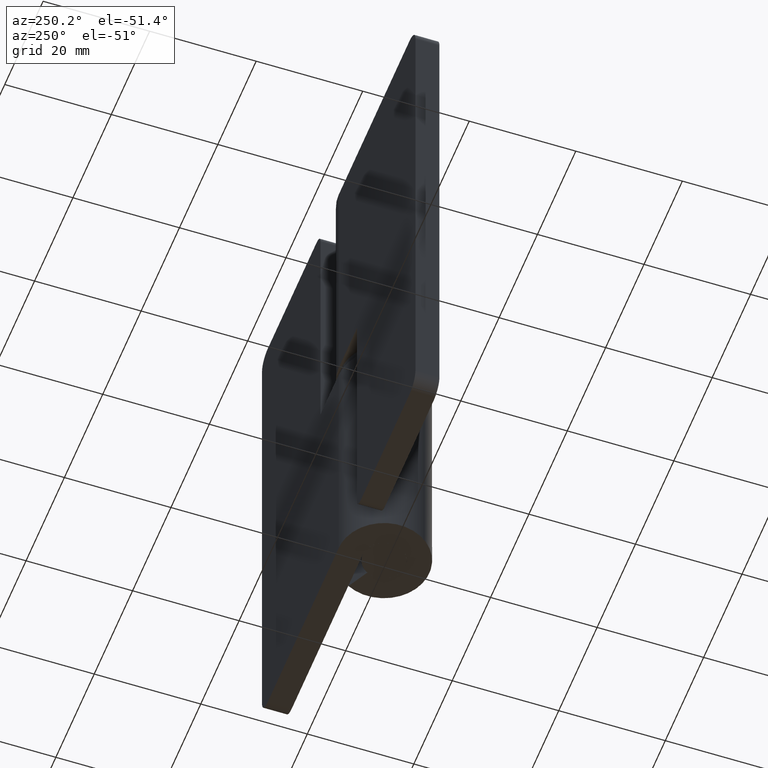
[diagram: clean part render]
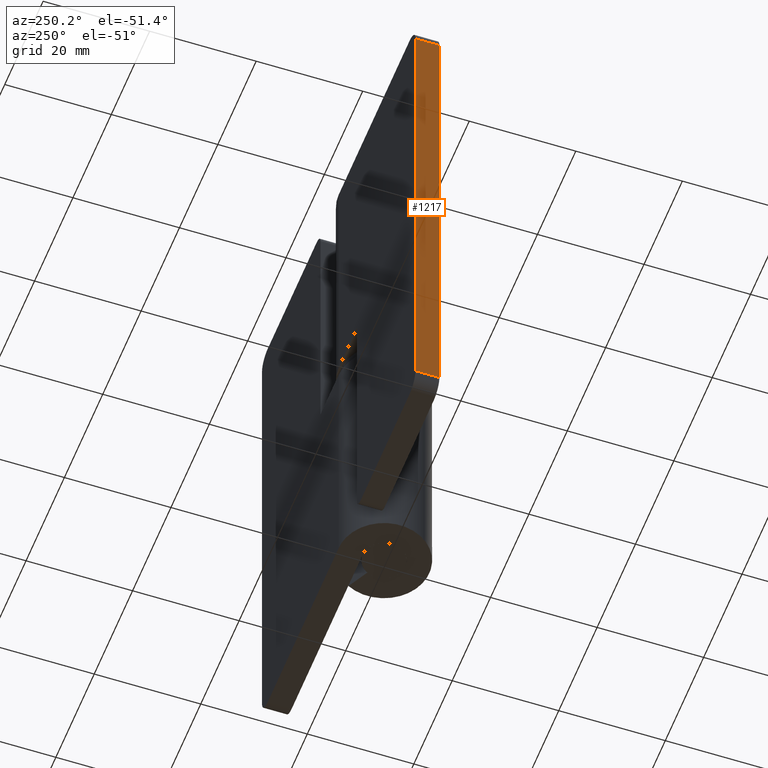
[diagram: same view with one face highlighted and labeled with its STEP entity id]
A machine part, auxiliary view. The second image highlights one B-rep face of the part: STEP entity #1217.
In plain terms, the highlighted face is a freeform B-spline surface patch.
Its self-contained STEP definition (entity closure, byte-faithful):
#860=CARTESIAN_POINT('',(-40.0,4.0,97.0));
#861=VERTEX_POINT('',#860);
#882=CARTESIAN_POINT('',(-40.0,8.500000000000000,97.0));
#883=VERTEX_POINT('',#882);
#897=CARTESIAN_POINT('',(-40.0,8.500000000000000,97.0));
#898=CARTESIAN_POINT('',(-40.0,4.0,97.0));
#899=QUASI_UNIFORM_CURVE('',1,(#897,#898),.UNSPECIFIED.,.F.,.U.);
#900=EDGE_CURVE('',#883,#861,#899,.T.);
#919=CARTESIAN_POINT('',(-40.0,4.0,3.0));
#920=VERTEX_POINT('',#919);
#936=CARTESIAN_POINT('',(-40.0,8.500000000000000,3.0));
#937=VERTEX_POINT('',#936);
#938=CARTESIAN_POINT('',(-40.0,8.500000000000000,3.0));
#939=CARTESIAN_POINT('',(-40.0,4.0,3.0));
#940=QUASI_UNIFORM_CURVE('',1,(#938,#939),.UNSPECIFIED.,.F.,.U.);
#941=EDGE_CURVE('',#937,#920,#940,.T.);
#1198=CARTESIAN_POINT('',(-40.0,3.775225008721873,-1.695299817809760));
#1199=CARTESIAN_POINT('',(-40.0,3.775225008721873,101.695302339086200));
#1200=CARTESIAN_POINT('',(-40.0,8.724775111977531,-1.695299817809760));
#1201=CARTESIAN_POINT('',(-40.0,8.724775111977531,101.695302339086200));
#1202=B_SPLINE_SURFACE_WITH_KNOTS('',1,1,((#1198,#1200),(#1199,#1201)),.UNSPECIFIED.,.F.,.F.,.U.,(2,2),(2,2),(0.0,103.390602156895990),(0.0,4.949550103255658),.UNSPECIFIED.);
#1203=ORIENTED_EDGE('',*,*,#900,.F.);
#1204=CARTESIAN_POINT('',(-40.0,8.500000000000000,3.0));
#1205=CARTESIAN_POINT('',(-40.0,8.500000000000000,97.0));
#1206=QUASI_UNIFORM_CURVE('',1,(#1204,#1205),.UNSPECIFIED.,.F.,.U.);
#1207=EDGE_CURVE('',#937,#883,#1206,.T.);
#1208=ORIENTED_EDGE('',*,*,#1207,.F.);
#1209=ORIENTED_EDGE('',*,*,#941,.T.);
#1210=CARTESIAN_POINT('',(-40.0,4.0,3.0));
#1211=CARTESIAN_POINT('',(-40.0,4.0,97.0));
#1212=QUASI_UNIFORM_CURVE('',1,(#1210,#1211),.UNSPECIFIED.,.F.,.U.);
#1213=EDGE_CURVE('',#920,#861,#1212,.T.);
#1214=ORIENTED_EDGE('',*,*,#1213,.T.);
#1215=EDGE_LOOP('',(#1203,#1208,#1209,#1214));
#1216=FACE_OUTER_BOUND('',#1215,.T.);
#1217=ADVANCED_FACE('',(#1216),#1202,.T.);